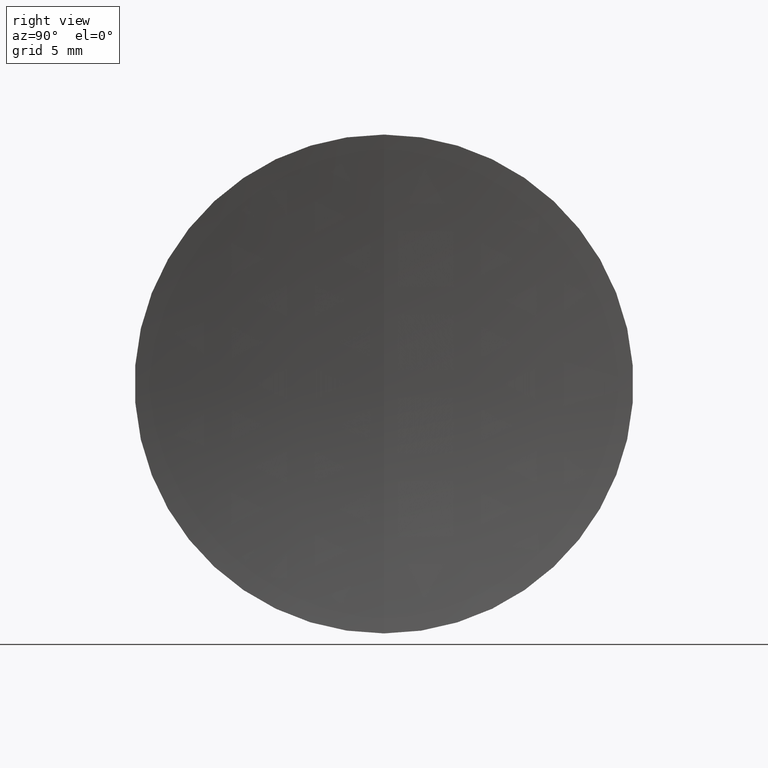
[diagram: clean part render]
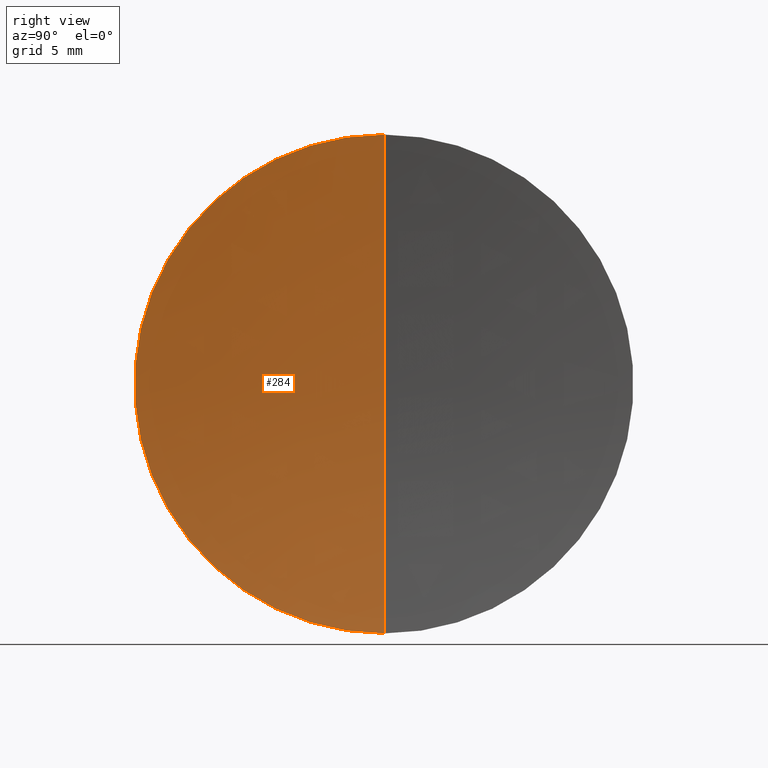
[diagram: same view with one face highlighted and labeled with its STEP entity id]
A machine part, right view. The second image highlights one B-rep face of the part: STEP entity #284.
In plain terms, the highlighted spherical surface has radius 100.69 mm.
Its self-contained STEP definition (entity closure, byte-faithful):
#15 = AXIS2_PLACEMENT_3D ( 'NONE', #70, #331, #325 ) ;
#25 = EDGE_CURVE ( 'NONE', #173, #267, #271, .T. ) ;
#38 = AXIS2_PLACEMENT_3D ( 'NONE', #334, #285, #268 ) ;
#42 = ORIENTED_EDGE ( 'NONE', *, *, #240, .F. ) ;
#52 = SPHERICAL_SURFACE ( 'NONE', #15, 100.6900000000000000 ) ;
#70 = CARTESIAN_POINT ( 'NONE',  ( 206.2748838390490100, 0.0000000000000000000, 0.0000000000000000000 ) ) ;
#117 = CARTESIAN_POINT ( 'NONE',  ( 106.7084432076796400, -1.836970198721022100E-015, 14.99999999999994000 ) ) ;
#137 = DIRECTION ( 'NONE',  ( 0.0000000000000000000, 0.0000000000000000000, 1.000000000000000000 ) ) ;
#140 = AXIS2_PLACEMENT_3D ( 'NONE', #158, #322, #188 ) ;
#147 = AXIS2_PLACEMENT_3D ( 'NONE', #216, #304, #137 ) ;
#158 = CARTESIAN_POINT ( 'NONE',  ( 206.2748838390490100, 0.0000000000000000000, 0.0000000000000000000 ) ) ;
#173 = VERTEX_POINT ( 'NONE', #276 ) ;
#188 = DIRECTION ( 'NONE',  ( 0.0000000000000000000, 1.224646799147353200E-016, -1.000000000000000000 ) ) ;
#200 = ORIENTED_EDGE ( 'NONE', *, *, #25, .T. ) ;
#216 = CARTESIAN_POINT ( 'NONE',  ( 106.7084432076796400, 0.0000000000000000000, 0.0000000000000000000 ) ) ;
#218 = ORIENTED_EDGE ( 'NONE', *, *, #340, .F. ) ;
#236 = VERTEX_POINT ( 'NONE', #117 ) ;
#237 = EDGE_LOOP ( 'NONE', ( #42, #218, #200 ) ) ;
#240 = EDGE_CURVE ( 'NONE', #236, #267, #305, .T. ) ;
#267 = VERTEX_POINT ( 'NONE', #282 ) ;
#268 = DIRECTION ( 'NONE',  ( 0.0000000000000000000, 0.0000000000000000000, 1.000000000000000000 ) ) ;
#271 = CIRCLE ( 'NONE', #38, 100.6900000000000000 ) ;
#276 = CARTESIAN_POINT ( 'NONE',  ( 106.7084432076796400, 0.0000000000000000000, -14.99999999999994000 ) ) ;
#282 = CARTESIAN_POINT ( 'NONE',  ( 105.5848838390490100, 0.0000000000000000000, -6.165484310307349800E-015 ) ) ;
#283 = CIRCLE ( 'NONE', #147, 15.00000000000000900 ) ;
#284 = ADVANCED_FACE ( 'NONE', ( #345 ), #52, .F. ) ;
#285 = DIRECTION ( 'NONE',  ( 0.0000000000000000000, 1.000000000000000000, -0.0000000000000000000 ) ) ;
#304 = DIRECTION ( 'NONE',  ( -1.000000000000000000, -0.0000000000000000000, -0.0000000000000000000 ) ) ;
#305 = CIRCLE ( 'NONE', #140, 100.6900000000000000 ) ;
#322 = DIRECTION ( 'NONE',  ( 0.0000000000000000000, -1.000000000000000000, -1.224646799147353200E-016 ) ) ;
#325 = DIRECTION ( 'NONE',  ( 0.0000000000000000000, 0.0000000000000000000, -1.000000000000000000 ) ) ;
#331 = DIRECTION ( 'NONE',  ( -0.0000000000000000000, -1.000000000000000000, -0.0000000000000000000 ) ) ;
#334 = CARTESIAN_POINT ( 'NONE',  ( 206.2748838390490100, 0.0000000000000000000, 0.0000000000000000000 ) ) ;
#340 = EDGE_CURVE ( 'NONE', #173, #236, #283, .T. ) ;
#345 = FACE_OUTER_BOUND ( 'NONE', #237, .T. ) ;